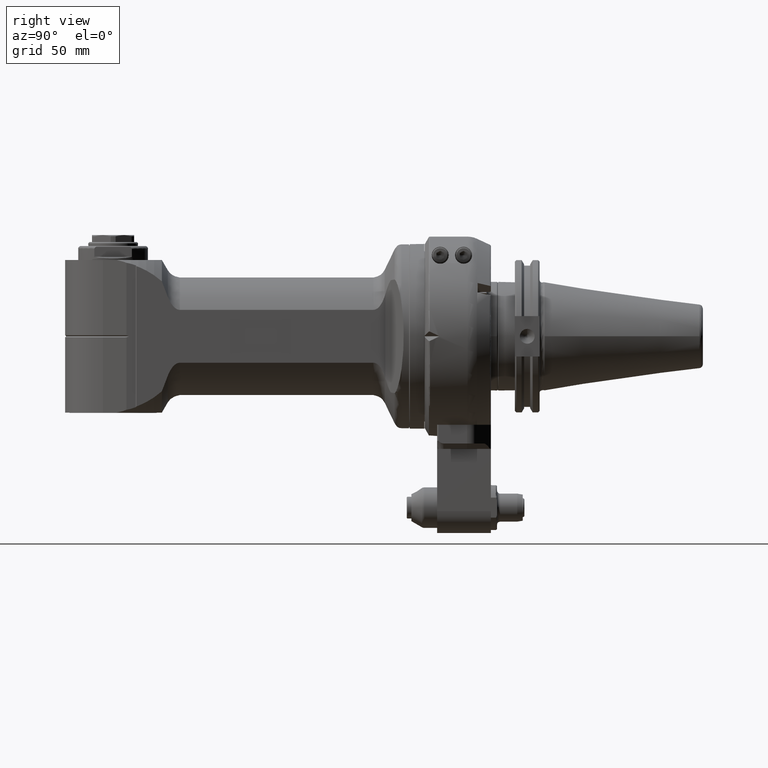
[diagram: clean part render]
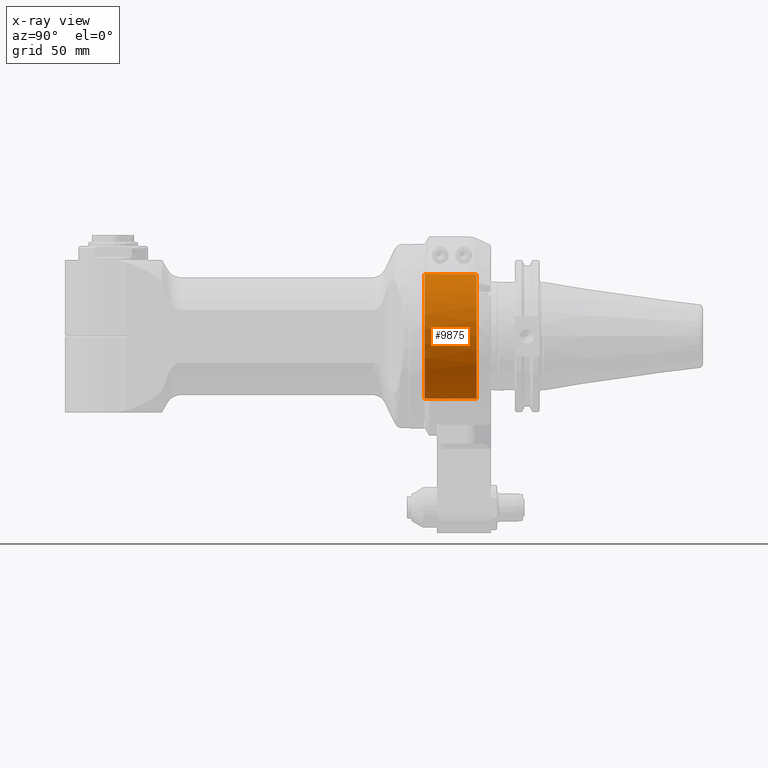
[diagram: x-ray — body ghosted, one internal face saturated and labeled with its STEP entity id]
A machine part, right view, then the same camera in x-ray: the body is ghosted and one INTERNAL B-rep face — a face not visible from any outside direction — is saturated and labeled: STEP entity #9875.
In plain terms, the highlighted cylindrical surface (bore or boss wall) has radius 40 mm, axis along (0, -1, -0).
Its self-contained STEP definition (entity closure, byte-faithful):
#456=CYLINDRICAL_SURFACE('',#10960,40.);
#1027=CIRCLE('',#10901,40.);
#1048=CIRCLE('',#10961,40.);
#1049=CIRCLE('',#10962,40.);
#1621=FACE_OUTER_BOUND('',#2282,.T.);
#2282=EDGE_LOOP('',(#8677,#8678,#8679,#8680,#8681));
#3100=LINE('',#31752,#3713);
#3713=VECTOR('',#13530,40.);
#4600=VERTEX_POINT('',#31613);
#4640=VERTEX_POINT('',#31751);
#4641=VERTEX_POINT('',#31753);
#5954=EDGE_CURVE('',#4600,#4600,#1027,.T.);
#6013=EDGE_CURVE('',#4600,#4640,#3100,.T.);
#6014=EDGE_CURVE('',#4641,#4640,#1048,.T.);
#6015=EDGE_CURVE('',#4640,#4641,#1049,.T.);
#8677=ORIENTED_EDGE('',*,*,#5954,.F.);
#8678=ORIENTED_EDGE('',*,*,#6013,.T.);
#8679=ORIENTED_EDGE('',*,*,#6014,.F.);
#8680=ORIENTED_EDGE('',*,*,#6015,.F.);
#8681=ORIENTED_EDGE('',*,*,#6013,.F.);
#9875=ADVANCED_FACE('',(#1621),#456,.T.);
#10901=AXIS2_PLACEMENT_3D('',#31614,#13372,#13373);
#10960=AXIS2_PLACEMENT_3D('',#31750,#13528,#13529);
#10961=AXIS2_PLACEMENT_3D('',#31754,#13531,#13532);
#10962=AXIS2_PLACEMENT_3D('',#31755,#13533,#13534);
#13372=DIRECTION('center_axis',(1.,0.,0.));
#13373=DIRECTION('ref_axis',(0.,1.,0.));
#13528=DIRECTION('center_axis',(1.,0.,0.));
#13529=DIRECTION('ref_axis',(0.,-1.,0.));
#13530=DIRECTION('',(-1.,0.,0.));
#13531=DIRECTION('center_axis',(-1.,0.,0.));
#13532=DIRECTION('ref_axis',(0.,-1.,0.));
#13533=DIRECTION('center_axis',(-1.,0.,0.));
#13534=DIRECTION('ref_axis',(0.,-1.,0.));
#31613=CARTESIAN_POINT('',(78.06309676923,40.,0.));
#31614=CARTESIAN_POINT('Origin',(78.06309676923,0.,0.));
#31750=CARTESIAN_POINT('Origin',(55.662897,0.,0.));
#31751=CARTESIAN_POINT('',(44.79514780757,40.,4.89858719658941E-15));
#31752=CARTESIAN_POINT('',(55.662897,40.,4.89858719658941E-15));
#31753=CARTESIAN_POINT('',(44.7951478075686,-4.89858719658971E-15,40.0000000000024));
#31754=CARTESIAN_POINT('Origin',(44.79514780757,0.,0.));
#31755=CARTESIAN_POINT('Origin',(44.79514780757,0.,0.));